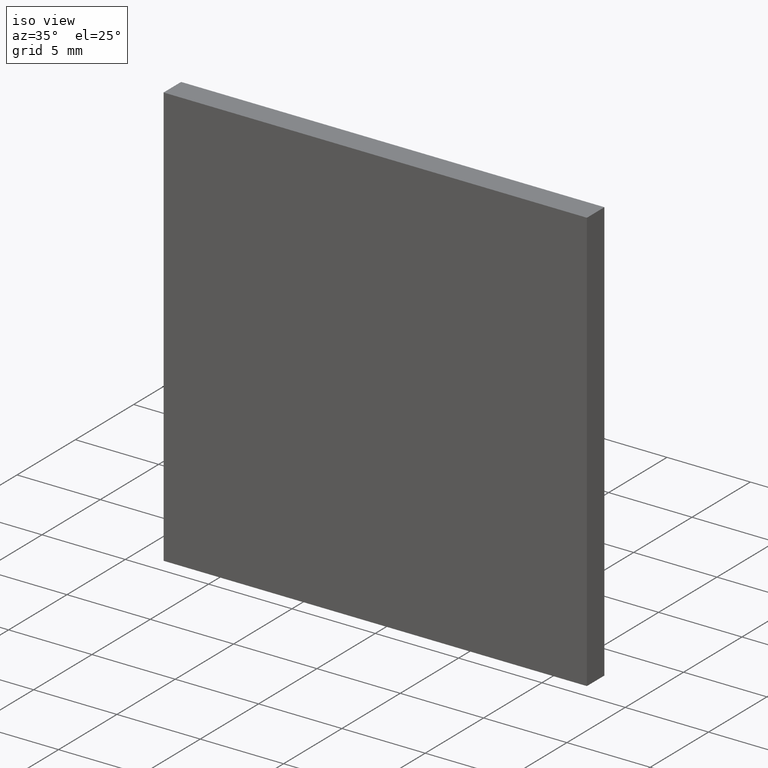
[diagram: clean part render]
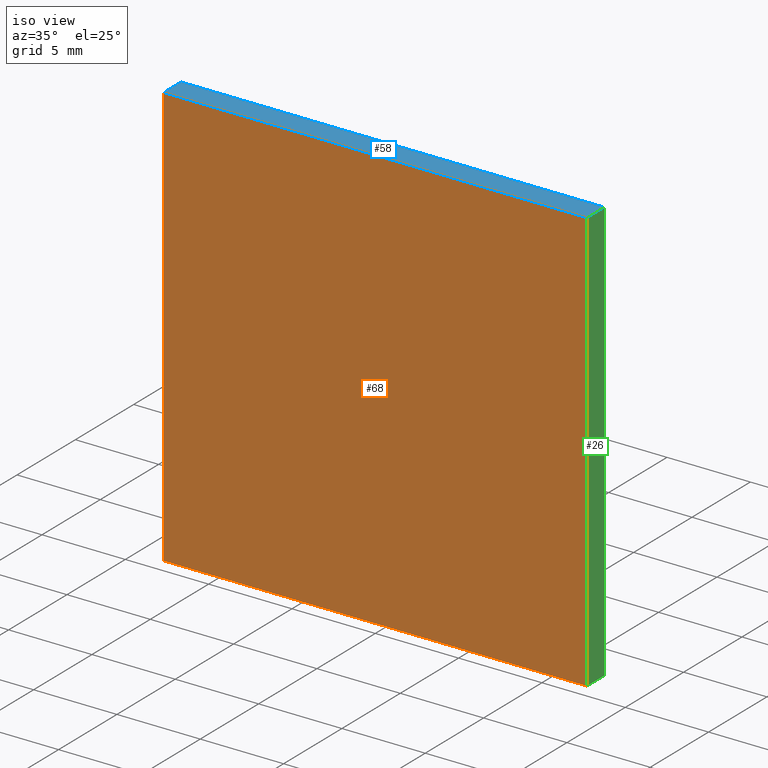
[diagram: same view with three faces highlighted in distinct colors, each labeled with its STEP entity id]
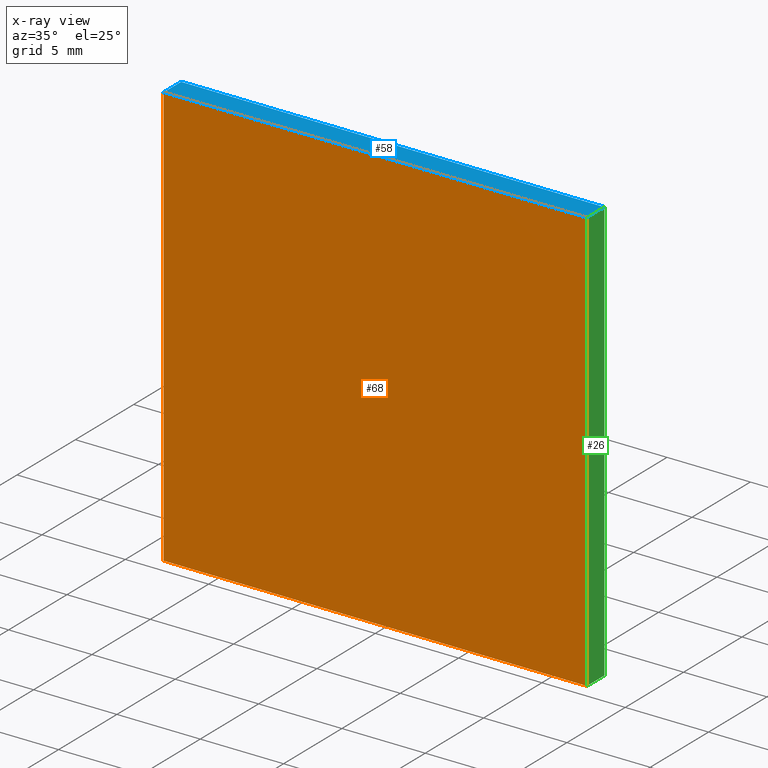
[diagram: x-ray of the same camera — body ghosted, the three highlighted faces saturated]
A machine part, iso view with three faces highlighted in distinct colors.
The next image is the same camera in x-ray (body ghosted, the three faces saturated) — at least one of them is partly hidden behind the body in this view.
Their STEP definitions:

[orange] entity #68 — the highlighted planar face has unit normal (0, -1, 0).
#1 = CARTESIAN_POINT ( 'NONE',  ( -12.70000000000000100, 0.0000000000000000000, -12.69999999999999800 ) ) ;
#3 = ORIENTED_EDGE ( 'NONE', *, *, #194, .F. ) ;
#6 = VERTEX_POINT ( 'NONE', #64 ) ;
#12 = CARTESIAN_POINT ( 'NONE',  ( 12.69999999999999800, 0.0000000000000000000, 12.69999999999999900 ) ) ;
#18 = DIRECTION ( 'NONE',  ( -1.000000000000000000, -0.0000000000000000000, -0.0000000000000000000 ) ) ;
#29 = PLANE ( 'NONE',  #70 ) ;
#35 = VERTEX_POINT ( 'NONE', #47 ) ;
#36 = VECTOR ( 'NONE', #150, 1000.000000000000000 ) ;
#38 = VECTOR ( 'NONE', #18, 1000.000000000000000 ) ;
#39 = EDGE_CURVE ( 'NONE', #35, #6, #109, .T. ) ;
#47 = CARTESIAN_POINT ( 'NONE',  ( 12.69999999999999800, 0.0000000000000000000, 12.69999999999999900 ) ) ;
#60 = LINE ( 'NONE', #102, #38 ) ;
#62 = CARTESIAN_POINT ( 'NONE',  ( 0.0000000000000000000, 0.0000000000000000000, 0.0000000000000000000 ) ) ;
#63 = ORIENTED_EDGE ( 'NONE', *, *, #156, .F. ) ;
#64 = CARTESIAN_POINT ( 'NONE',  ( 12.69999999999999800, 0.0000000000000000000, -12.69999999999999800 ) ) ;
#65 = ORIENTED_EDGE ( 'NONE', *, *, #92, .F. ) ;
#68 = ADVANCED_FACE ( 'NONE', ( #155 ), #29, .T. ) ;
#70 = AXIS2_PLACEMENT_3D ( 'NONE', #62, #160, #124 ) ;
#90 = LINE ( 'NONE', #113, #125 ) ;
#92 = EDGE_CURVE ( 'NONE', #200, #141, #104, .T. ) ;
#102 = CARTESIAN_POINT ( 'NONE',  ( -12.70000000000000100, 0.0000000000000000000, -12.69999999999999800 ) ) ;
#104 = LINE ( 'NONE', #116, #36 ) ;
#108 = DIRECTION ( 'NONE',  ( 0.0000000000000000000, 0.0000000000000000000, -1.000000000000000000 ) ) ;
#109 = LINE ( 'NONE', #12, #117 ) ;
#113 = CARTESIAN_POINT ( 'NONE',  ( -12.70000000000000100, 0.0000000000000000000, 12.69999999999999900 ) ) ;
#116 = CARTESIAN_POINT ( 'NONE',  ( -12.70000000000000100, 0.0000000000000000000, 12.69999999999999900 ) ) ;
#117 = VECTOR ( 'NONE', #108, 1000.000000000000000 ) ;
#124 = DIRECTION ( 'NONE',  ( 0.0000000000000000000, -0.0000000000000000000, -1.000000000000000000 ) ) ;
#125 = VECTOR ( 'NONE', #189, 1000.000000000000000 ) ;
#134 = CARTESIAN_POINT ( 'NONE',  ( -12.70000000000000100, 0.0000000000000000000, 12.69999999999999900 ) ) ;
#141 = VERTEX_POINT ( 'NONE', #134 ) ;
#150 = DIRECTION ( 'NONE',  ( -0.0000000000000000000, -0.0000000000000000000, 1.000000000000000000 ) ) ;
#155 = FACE_OUTER_BOUND ( 'NONE', #177, .T. ) ;
#156 = EDGE_CURVE ( 'NONE', #141, #35, #90, .T. ) ;
#160 = DIRECTION ( 'NONE',  ( 0.0000000000000000000, -1.000000000000000000, 0.0000000000000000000 ) ) ;
#177 = EDGE_LOOP ( 'NONE', ( #188, #63, #65, #3 ) ) ;
#188 = ORIENTED_EDGE ( 'NONE', *, *, #39, .F. ) ;
#189 = DIRECTION ( 'NONE',  ( 1.000000000000000000, 0.0000000000000000000, 0.0000000000000000000 ) ) ;
#194 = EDGE_CURVE ( 'NONE', #6, #200, #60, .T. ) ;
#200 = VERTEX_POINT ( 'NONE', #1 ) ;

[blue] entity #58 — the highlighted planar face has unit normal (0, 0, -1).
#7 = LINE ( 'NONE', #185, #176 ) ;
#10 = EDGE_LOOP ( 'NONE', ( #178, #179, #180, #52 ) ) ;
#11 = VERTEX_POINT ( 'NONE', #111 ) ;
#35 = VERTEX_POINT ( 'NONE', #47 ) ;
#45 = VERTEX_POINT ( 'NONE', #145 ) ;
#46 = DIRECTION ( 'NONE',  ( -1.000000000000000000, 0.0000000000000000000, -0.0000000000000000000 ) ) ;
#47 = CARTESIAN_POINT ( 'NONE',  ( 12.69999999999999800, 0.0000000000000000000, 12.69999999999999900 ) ) ;
#52 = ORIENTED_EDGE ( 'NONE', *, *, #191, .T. ) ;
#57 = AXIS2_PLACEMENT_3D ( 'NONE', #82, #143, #46 ) ;
#58 = ADVANCED_FACE ( 'NONE', ( #159 ), #94, .F. ) ;
#80 = EDGE_CURVE ( 'NONE', #11, #35, #144, .T. ) ;
#82 = CARTESIAN_POINT ( 'NONE',  ( -12.70000000000000100, 1.500000000000000000, 12.69999999999999900 ) ) ;
#90 = LINE ( 'NONE', #113, #125 ) ;
#91 = VECTOR ( 'NONE', #127, 1000.000000000000000 ) ;
#94 = PLANE ( 'NONE',  #57 ) ;
#95 = LINE ( 'NONE', #133, #135 ) ;
#103 = DIRECTION ( 'NONE',  ( 1.000000000000000000, 0.0000000000000000000, 0.0000000000000000000 ) ) ;
#111 = CARTESIAN_POINT ( 'NONE',  ( 12.69999999999999800, 1.500000000000000000, 12.69999999999999900 ) ) ;
#113 = CARTESIAN_POINT ( 'NONE',  ( -12.70000000000000100, 0.0000000000000000000, 12.69999999999999900 ) ) ;
#125 = VECTOR ( 'NONE', #189, 1000.000000000000000 ) ;
#127 = DIRECTION ( 'NONE',  ( -0.0000000000000000000, -1.000000000000000000, -0.0000000000000000000 ) ) ;
#133 = CARTESIAN_POINT ( 'NONE',  ( -12.70000000000000100, 1.500000000000000000, 12.69999999999999900 ) ) ;
#134 = CARTESIAN_POINT ( 'NONE',  ( -12.70000000000000100, 0.0000000000000000000, 12.69999999999999900 ) ) ;
#135 = VECTOR ( 'NONE', #170, 1000.000000000000000 ) ;
#141 = VERTEX_POINT ( 'NONE', #134 ) ;
#143 = DIRECTION ( 'NONE',  ( 0.0000000000000000000, 0.0000000000000000000, -1.000000000000000000 ) ) ;
#144 = LINE ( 'NONE', #181, #91 ) ;
#145 = CARTESIAN_POINT ( 'NONE',  ( -12.70000000000000100, 1.500000000000000000, 12.69999999999999900 ) ) ;
#147 = EDGE_CURVE ( 'NONE', #45, #11, #7, .T. ) ;
#156 = EDGE_CURVE ( 'NONE', #141, #35, #90, .T. ) ;
#159 = FACE_OUTER_BOUND ( 'NONE', #10, .T. ) ;
#170 = DIRECTION ( 'NONE',  ( -0.0000000000000000000, -1.000000000000000000, -0.0000000000000000000 ) ) ;
#176 = VECTOR ( 'NONE', #103, 1000.000000000000000 ) ;
#178 = ORIENTED_EDGE ( 'NONE', *, *, #156, .T. ) ;
#179 = ORIENTED_EDGE ( 'NONE', *, *, #80, .F. ) ;
#180 = ORIENTED_EDGE ( 'NONE', *, *, #147, .F. ) ;
#181 = CARTESIAN_POINT ( 'NONE',  ( 12.69999999999999800, 1.500000000000000000, 12.69999999999999900 ) ) ;
#185 = CARTESIAN_POINT ( 'NONE',  ( -12.70000000000000100, 1.500000000000000000, 12.69999999999999900 ) ) ;
#189 = DIRECTION ( 'NONE',  ( 1.000000000000000000, 0.0000000000000000000, 0.0000000000000000000 ) ) ;
#191 = EDGE_CURVE ( 'NONE', #45, #141, #95, .T. ) ;

[green] entity #26 — the highlighted planar face has unit normal (-1, 0, 0).
#6 = VERTEX_POINT ( 'NONE', #64 ) ;
#11 = VERTEX_POINT ( 'NONE', #111 ) ;
#12 = CARTESIAN_POINT ( 'NONE',  ( 12.69999999999999800, 0.0000000000000000000, 12.69999999999999900 ) ) ;
#13 = EDGE_CURVE ( 'NONE', #11, #41, #93, .T. ) ;
#17 = LINE ( 'NONE', #21, #79 ) ;
#21 = CARTESIAN_POINT ( 'NONE',  ( 12.69999999999999800, 1.500000000000000000, -12.69999999999999800 ) ) ;
#26 = ADVANCED_FACE ( 'NONE', ( #101 ), #49, .F. ) ;
#27 = CARTESIAN_POINT ( 'NONE',  ( 12.69999999999999800, 1.500000000000000000, -12.69999999999999800 ) ) ;
#30 = DIRECTION ( 'NONE',  ( 0.0000000000000000000, 0.0000000000000000000, -1.000000000000000000 ) ) ;
#33 = EDGE_LOOP ( 'NONE', ( #142, #197, #121, #202 ) ) ;
#35 = VERTEX_POINT ( 'NONE', #47 ) ;
#39 = EDGE_CURVE ( 'NONE', #35, #6, #109, .T. ) ;
#41 = VERTEX_POINT ( 'NONE', #27 ) ;
#47 = CARTESIAN_POINT ( 'NONE',  ( 12.69999999999999800, 0.0000000000000000000, 12.69999999999999900 ) ) ;
#49 = PLANE ( 'NONE',  #184 ) ;
#56 = DIRECTION ( 'NONE',  ( -0.0000000000000000000, -1.000000000000000000, -0.0000000000000000000 ) ) ;
#64 = CARTESIAN_POINT ( 'NONE',  ( 12.69999999999999800, 0.0000000000000000000, -12.69999999999999800 ) ) ;
#79 = VECTOR ( 'NONE', #56, 1000.000000000000000 ) ;
#80 = EDGE_CURVE ( 'NONE', #11, #35, #144, .T. ) ;
#91 = VECTOR ( 'NONE', #127, 1000.000000000000000 ) ;
#93 = LINE ( 'NONE', #97, #126 ) ;
#97 = CARTESIAN_POINT ( 'NONE',  ( 12.69999999999999800, 1.500000000000000000, 12.69999999999999900 ) ) ;
#101 = FACE_OUTER_BOUND ( 'NONE', #33, .T. ) ;
#108 = DIRECTION ( 'NONE',  ( 0.0000000000000000000, 0.0000000000000000000, -1.000000000000000000 ) ) ;
#109 = LINE ( 'NONE', #12, #117 ) ;
#111 = CARTESIAN_POINT ( 'NONE',  ( 12.69999999999999800, 1.500000000000000000, 12.69999999999999900 ) ) ;
#114 = DIRECTION ( 'NONE',  ( -1.000000000000000000, 0.0000000000000000000, 0.0000000000000000000 ) ) ;
#117 = VECTOR ( 'NONE', #108, 1000.000000000000000 ) ;
#121 = ORIENTED_EDGE ( 'NONE', *, *, #13, .F. ) ;
#126 = VECTOR ( 'NONE', #30, 1000.000000000000000 ) ;
#127 = DIRECTION ( 'NONE',  ( -0.0000000000000000000, -1.000000000000000000, -0.0000000000000000000 ) ) ;
#128 = EDGE_CURVE ( 'NONE', #41, #6, #17, .T. ) ;
#131 = CARTESIAN_POINT ( 'NONE',  ( 12.69999999999999800, 1.500000000000000000, 12.69999999999999900 ) ) ;
#142 = ORIENTED_EDGE ( 'NONE', *, *, #39, .T. ) ;
#144 = LINE ( 'NONE', #181, #91 ) ;
#181 = CARTESIAN_POINT ( 'NONE',  ( 12.69999999999999800, 1.500000000000000000, 12.69999999999999900 ) ) ;
#184 = AXIS2_PLACEMENT_3D ( 'NONE', #131, #114, #198 ) ;
#197 = ORIENTED_EDGE ( 'NONE', *, *, #128, .F. ) ;
#198 = DIRECTION ( 'NONE',  ( 0.0000000000000000000, 0.0000000000000000000, 1.000000000000000000 ) ) ;
#202 = ORIENTED_EDGE ( 'NONE', *, *, #80, .T. ) ;